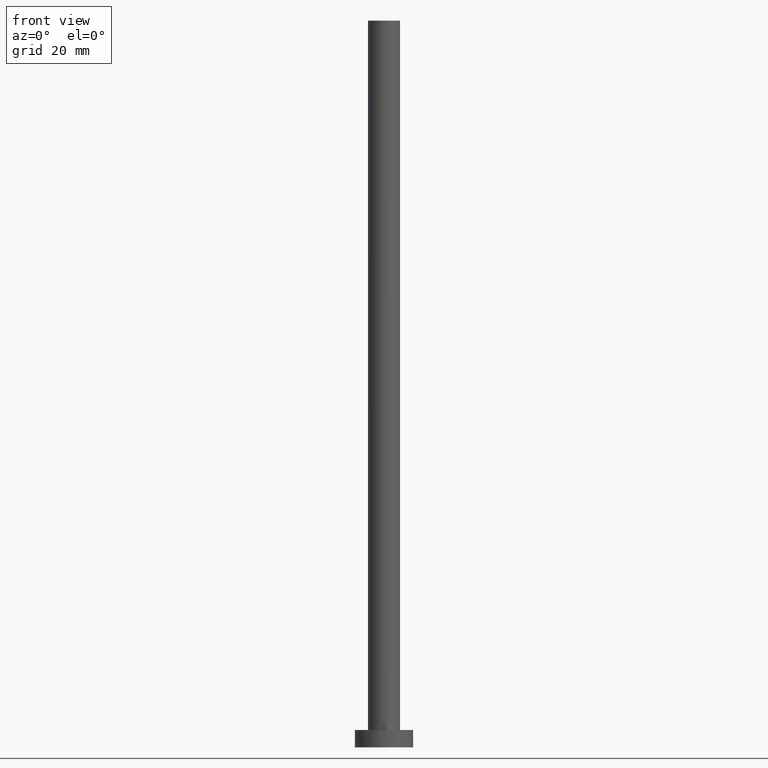
[diagram: clean part render]
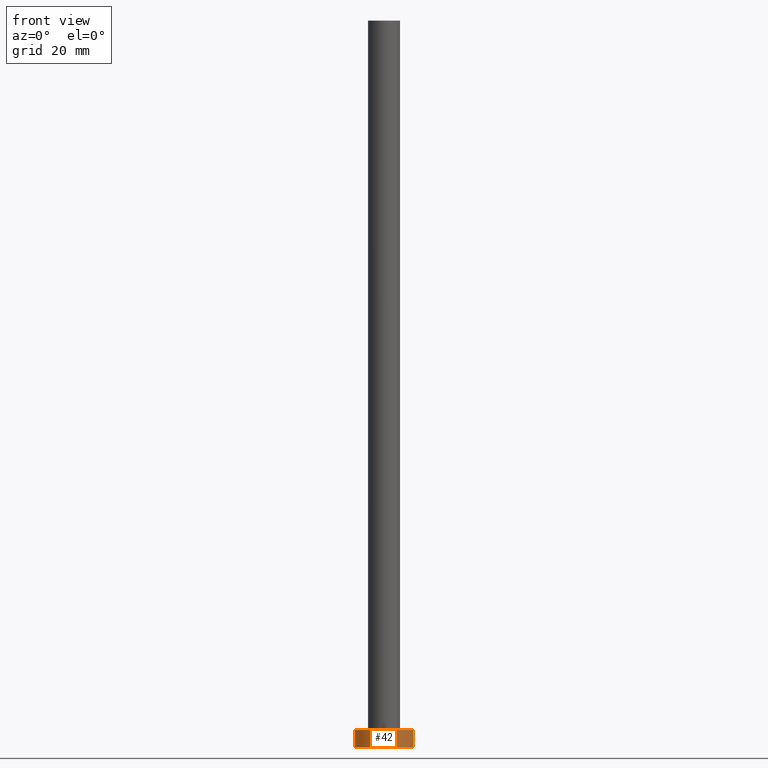
[diagram: same view with one face highlighted and labeled with its STEP entity id]
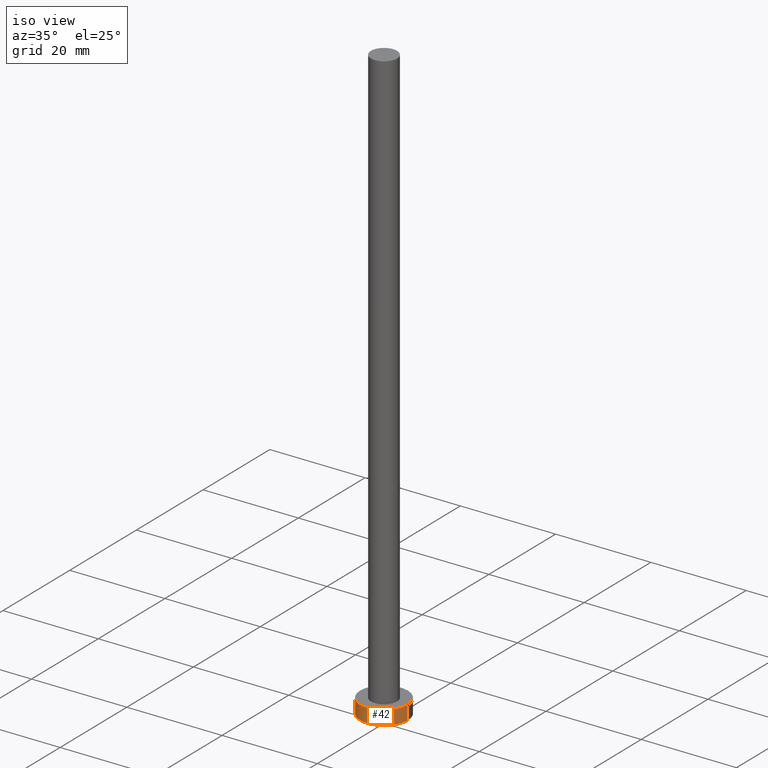
[diagram: same view with one face highlighted and labeled with its STEP entity id]
A machine part, front view. The second image highlights one B-rep face of the part: STEP entity #42.
A second angle (iso view) of the same face is appended — the face is thin or edge-on in the first view.
In plain terms, the highlighted cylindrical surface (edge-blend (fillet) strip) has radius 5 mm, axis along (-0, -0, -1).
Its self-contained STEP definition (entity closure, byte-faithful):
#1 = DIRECTION ( 'NONE',  ( -1.000000000000000000, 0.000000000000000000, 0.000000000000000000 ) ) ;
#2 = CARTESIAN_POINT ( 'NONE',  ( 5.000000000000000000, 6.123233995736766282E-16, 0.000000000000000000 ) ) ;
#15 = VECTOR ( 'NONE', #161, 1000.000000000000000 ) ;
#16 = ORIENTED_EDGE ( 'NONE', *, *, #203, .T. ) ;
#29 = AXIS2_PLACEMENT_3D ( 'NONE', #162, #114, #166 ) ;
#37 = EDGE_CURVE ( 'NONE', #58, #217, #197, .T. ) ;
#38 = ORIENTED_EDGE ( 'NONE', *, *, #118, .F. ) ;
#42 = ADVANCED_FACE ( 'NONE', ( #220 ), #45, .T. ) ;
#45 = CYLINDRICAL_SURFACE ( 'NONE', #196, 5.000000000000000000 ) ;
#50 = CARTESIAN_POINT ( 'NONE',  ( -5.000000000000000000, 0.000000000000000000, 3.000000000000000000 ) ) ;
#58 = VERTEX_POINT ( 'NONE', #96 ) ;
#80 = EDGE_CURVE ( 'NONE', #154, #230, #251, .T. ) ;
#84 = CARTESIAN_POINT ( 'NONE',  ( 0.000000000000000000, 0.000000000000000000, 3.000000000000000000 ) ) ;
#85 = VECTOR ( 'NONE', #199, 1000.000000000000000 ) ;
#86 = ORIENTED_EDGE ( 'NONE', *, *, #37, .F. ) ;
#96 = CARTESIAN_POINT ( 'NONE',  ( -5.000000000000000000, 0.000000000000000000, 3.000000000000000000 ) ) ;
#98 = AXIS2_PLACEMENT_3D ( 'NONE', #84, #158, #136 ) ;
#114 = DIRECTION ( 'NONE',  ( 0.000000000000000000, 0.000000000000000000, 1.000000000000000000 ) ) ;
#118 = EDGE_CURVE ( 'NONE', #217, #230, #182, .T. ) ;
#123 = CARTESIAN_POINT ( 'NONE',  ( 0.000000000000000000, 0.000000000000000000, 3.000000000000000000 ) ) ;
#126 = LINE ( 'NONE', #50, #85 ) ;
#129 = ORIENTED_EDGE ( 'NONE', *, *, #80, .T. ) ;
#136 = DIRECTION ( 'NONE',  ( 1.000000000000000000, 0.000000000000000000, 0.000000000000000000 ) ) ;
#145 = CARTESIAN_POINT ( 'NONE',  ( 5.000000000000000000, 6.123233995736766282E-16, 3.000000000000000000 ) ) ;
#154 = VERTEX_POINT ( 'NONE', #179 ) ;
#158 = DIRECTION ( 'NONE',  ( 0.000000000000000000, 0.000000000000000000, 1.000000000000000000 ) ) ;
#161 = DIRECTION ( 'NONE',  ( -0.000000000000000000, -0.000000000000000000, -1.000000000000000000 ) ) ;
#162 = CARTESIAN_POINT ( 'NONE',  ( 0.000000000000000000, 0.000000000000000000, 0.000000000000000000 ) ) ;
#166 = DIRECTION ( 'NONE',  ( 1.000000000000000000, 0.000000000000000000, 0.000000000000000000 ) ) ;
#179 = CARTESIAN_POINT ( 'NONE',  ( -5.000000000000000000, 0.000000000000000000, 0.000000000000000000 ) ) ;
#182 = LINE ( 'NONE', #206, #15 ) ;
#195 = DIRECTION ( 'NONE',  ( -0.000000000000000000, -0.000000000000000000, -1.000000000000000000 ) ) ;
#196 = AXIS2_PLACEMENT_3D ( 'NONE', #123, #195, #1 ) ;
#197 = CIRCLE ( 'NONE', #98, 5.000000000000000000 ) ;
#199 = DIRECTION ( 'NONE',  ( -0.000000000000000000, -0.000000000000000000, -1.000000000000000000 ) ) ;
#203 = EDGE_CURVE ( 'NONE', #58, #154, #126, .T. ) ;
#206 = CARTESIAN_POINT ( 'NONE',  ( 5.000000000000000000, 6.123233995736766282E-16, 3.000000000000000000 ) ) ;
#211 = EDGE_LOOP ( 'NONE', ( #38, #86, #16, #129 ) ) ;
#217 = VERTEX_POINT ( 'NONE', #145 ) ;
#220 = FACE_OUTER_BOUND ( 'NONE', #211, .T. ) ;
#230 = VERTEX_POINT ( 'NONE', #2 ) ;
#251 = CIRCLE ( 'NONE', #29, 5.000000000000000000 ) ;